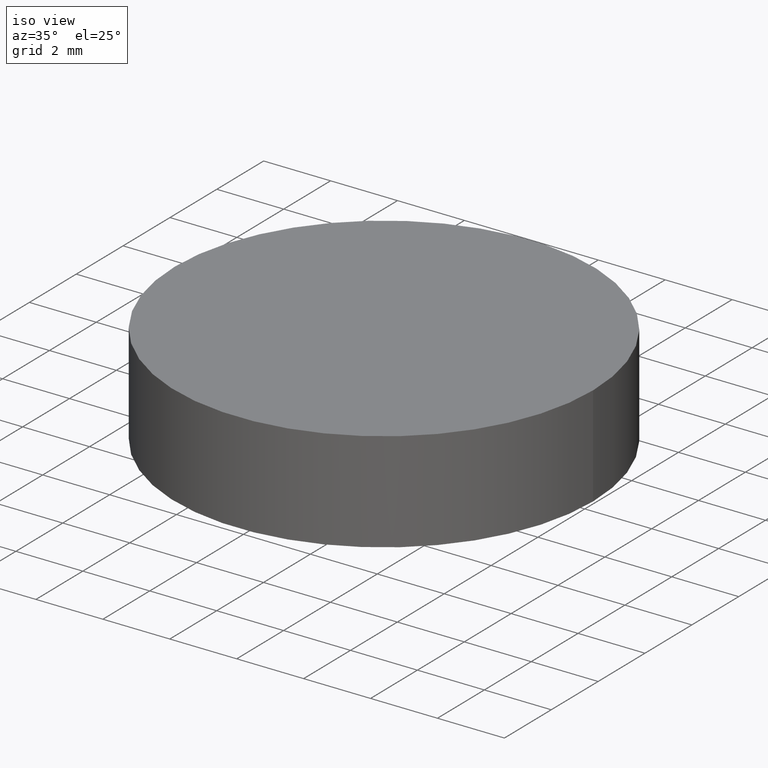
[diagram: clean part render]
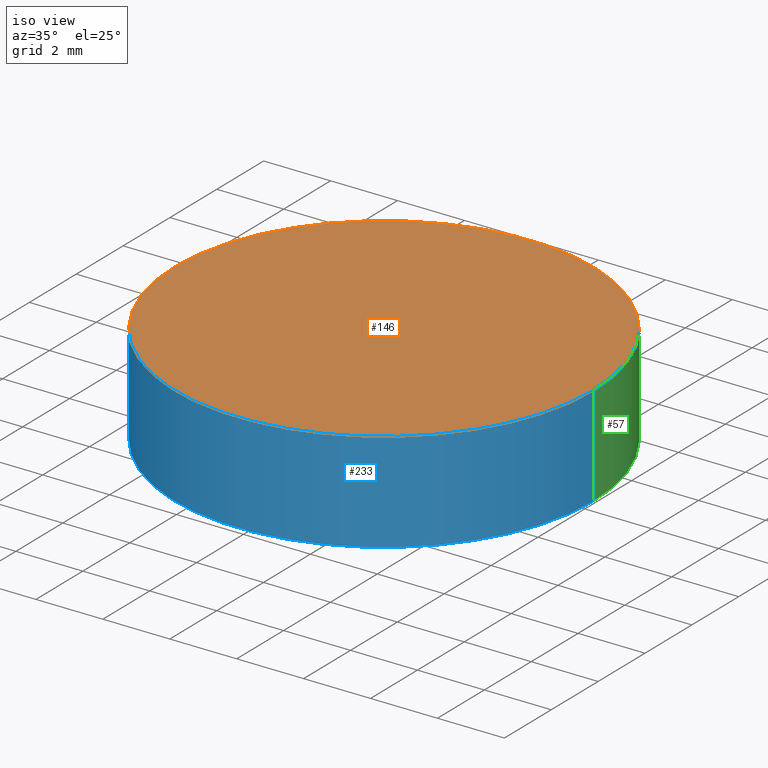
[diagram: same view with three faces highlighted in distinct colors, each labeled with its STEP entity id]
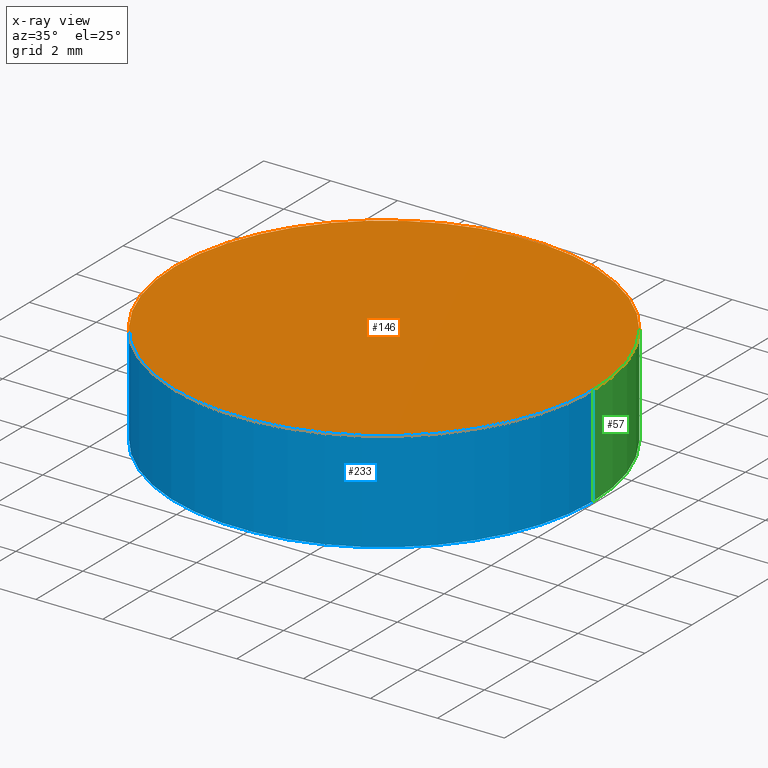
[diagram: x-ray of the same camera — body ghosted, the three highlighted faces saturated]
A machine part, iso view with three faces highlighted in distinct colors.
The next image is the same camera in x-ray (body ghosted, the three faces saturated) — at least one of them is partly hidden behind the body in this view.
Their STEP definitions:

[orange] entity #146 — the highlighted planar face has unit normal (0, 0, 1).
#1 = VERTEX_POINT ( 'NONE', #151 ) ;
#28 = DIRECTION ( 'NONE',  ( 0.0000000000000000000, 0.0000000000000000000, 1.000000000000000000 ) ) ;
#29 = PLANE ( 'NONE',  #49 ) ;
#44 = ORIENTED_EDGE ( 'NONE', *, *, #247, .T. ) ;
#45 = DIRECTION ( 'NONE',  ( 1.000000000000000000, 0.0000000000000000000, 0.0000000000000000000 ) ) ;
#49 = AXIS2_PLACEMENT_3D ( 'NONE', #217, #239, #160 ) ;
#62 = CARTESIAN_POINT ( 'NONE',  ( 0.0000000000000000000, 0.0000000000000000000, 3.000000000000000000 ) ) ;
#80 = EDGE_LOOP ( 'NONE', ( #44, #104 ) ) ;
#104 = ORIENTED_EDGE ( 'NONE', *, *, #137, .T. ) ;
#120 = CARTESIAN_POINT ( 'NONE',  ( 6.249999999999998200, 7.654042494670955600E-016, 3.000000000000000000 ) ) ;
#126 = FACE_OUTER_BOUND ( 'NONE', #80, .T. ) ;
#134 = DIRECTION ( 'NONE',  ( 0.0000000000000000000, 0.0000000000000000000, 1.000000000000000000 ) ) ;
#137 = EDGE_CURVE ( 'NONE', #197, #1, #195, .T. ) ;
#138 = CARTESIAN_POINT ( 'NONE',  ( 0.0000000000000000000, 0.0000000000000000000, 3.000000000000000000 ) ) ;
#146 = ADVANCED_FACE ( 'NONE', ( #126 ), #29, .T. ) ;
#149 = CIRCLE ( 'NONE', #203, 6.249999999999998200 ) ;
#151 = CARTESIAN_POINT ( 'NONE',  ( -6.249999999999998200, 0.0000000000000000000, 3.000000000000000000 ) ) ;
#154 = AXIS2_PLACEMENT_3D ( 'NONE', #138, #28, #156 ) ;
#156 = DIRECTION ( 'NONE',  ( 1.000000000000000000, 0.0000000000000000000, 0.0000000000000000000 ) ) ;
#160 = DIRECTION ( 'NONE',  ( 1.000000000000000000, 0.0000000000000000000, -0.0000000000000000000 ) ) ;
#195 = CIRCLE ( 'NONE', #154, 6.249999999999998200 ) ;
#197 = VERTEX_POINT ( 'NONE', #120 ) ;
#203 = AXIS2_PLACEMENT_3D ( 'NONE', #62, #134, #45 ) ;
#217 = CARTESIAN_POINT ( 'NONE',  ( 0.0000000000000000000, 0.0000000000000000000, 3.000000000000000000 ) ) ;
#239 = DIRECTION ( 'NONE',  ( 0.0000000000000000000, 0.0000000000000000000, 1.000000000000000000 ) ) ;
#247 = EDGE_CURVE ( 'NONE', #1, #197, #149, .T. ) ;

[blue] entity #233 — the highlighted cylindrical surface (partial cylindrical patch) has radius 6.25 mm, axis along (-0, -0, -1).
#1 = VERTEX_POINT ( 'NONE', #151 ) ;
#8 = DIRECTION ( 'NONE',  ( -0.0000000000000000000, -0.0000000000000000000, -1.000000000000000000 ) ) ;
#12 = AXIS2_PLACEMENT_3D ( 'NONE', #122, #8, #214 ) ;
#15 = ORIENTED_EDGE ( 'NONE', *, *, #226, .T. ) ;
#31 = EDGE_LOOP ( 'NONE', ( #95, #131, #15, #52 ) ) ;
#36 = VERTEX_POINT ( 'NONE', #117 ) ;
#41 = LINE ( 'NONE', #213, #240 ) ;
#45 = DIRECTION ( 'NONE',  ( 1.000000000000000000, 0.0000000000000000000, 0.0000000000000000000 ) ) ;
#48 = DIRECTION ( 'NONE',  ( 1.000000000000000000, 0.0000000000000000000, 0.0000000000000000000 ) ) ;
#51 = LINE ( 'NONE', #136, #250 ) ;
#52 = ORIENTED_EDGE ( 'NONE', *, *, #108, .T. ) ;
#62 = CARTESIAN_POINT ( 'NONE',  ( 0.0000000000000000000, 0.0000000000000000000, 3.000000000000000000 ) ) ;
#64 = DIRECTION ( 'NONE',  ( 0.0000000000000000000, 0.0000000000000000000, 1.000000000000000000 ) ) ;
#95 = ORIENTED_EDGE ( 'NONE', *, *, #183, .F. ) ;
#108 = EDGE_CURVE ( 'NONE', #193, #36, #231, .T. ) ;
#117 = CARTESIAN_POINT ( 'NONE',  ( 6.249999999999998200, 7.654042494670955600E-016, 0.0000000000000000000 ) ) ;
#119 = CARTESIAN_POINT ( 'NONE',  ( -6.249999999999998200, 0.0000000000000000000, 0.0000000000000000000 ) ) ;
#120 = CARTESIAN_POINT ( 'NONE',  ( 6.249999999999998200, 7.654042494670955600E-016, 3.000000000000000000 ) ) ;
#122 = CARTESIAN_POINT ( 'NONE',  ( 0.0000000000000000000, 0.0000000000000000000, 3.000000000000000000 ) ) ;
#131 = ORIENTED_EDGE ( 'NONE', *, *, #247, .F. ) ;
#134 = DIRECTION ( 'NONE',  ( 0.0000000000000000000, 0.0000000000000000000, 1.000000000000000000 ) ) ;
#136 = CARTESIAN_POINT ( 'NONE',  ( 6.249999999999998200, 7.654042494670955600E-016, 3.000000000000000000 ) ) ;
#140 = CYLINDRICAL_SURFACE ( 'NONE', #12, 6.249999999999998200 ) ;
#148 = AXIS2_PLACEMENT_3D ( 'NONE', #181, #64, #48 ) ;
#149 = CIRCLE ( 'NONE', #203, 6.249999999999998200 ) ;
#151 = CARTESIAN_POINT ( 'NONE',  ( -6.249999999999998200, 0.0000000000000000000, 3.000000000000000000 ) ) ;
#179 = DIRECTION ( 'NONE',  ( -0.0000000000000000000, -0.0000000000000000000, -1.000000000000000000 ) ) ;
#181 = CARTESIAN_POINT ( 'NONE',  ( 0.0000000000000000000, 0.0000000000000000000, 0.0000000000000000000 ) ) ;
#183 = EDGE_CURVE ( 'NONE', #197, #36, #51, .T. ) ;
#184 = FACE_OUTER_BOUND ( 'NONE', #31, .T. ) ;
#193 = VERTEX_POINT ( 'NONE', #119 ) ;
#197 = VERTEX_POINT ( 'NONE', #120 ) ;
#203 = AXIS2_PLACEMENT_3D ( 'NONE', #62, #134, #45 ) ;
#213 = CARTESIAN_POINT ( 'NONE',  ( -6.249999999999998200, 0.0000000000000000000, 3.000000000000000000 ) ) ;
#214 = DIRECTION ( 'NONE',  ( -1.000000000000000000, 0.0000000000000000000, 0.0000000000000000000 ) ) ;
#226 = EDGE_CURVE ( 'NONE', #1, #193, #41, .T. ) ;
#231 = CIRCLE ( 'NONE', #148, 6.249999999999998200 ) ;
#233 = ADVANCED_FACE ( 'NONE', ( #184 ), #140, .T. ) ;
#238 = DIRECTION ( 'NONE',  ( -0.0000000000000000000, -0.0000000000000000000, -1.000000000000000000 ) ) ;
#240 = VECTOR ( 'NONE', #179, 1000.000000000000000 ) ;
#247 = EDGE_CURVE ( 'NONE', #1, #197, #149, .T. ) ;
#250 = VECTOR ( 'NONE', #238, 1000.000000000000000 ) ;

[green] entity #57 — the highlighted cylindrical surface (partial cylindrical patch) has radius 6.25 mm, axis along (-0, -0, -1).
#1 = VERTEX_POINT ( 'NONE', #151 ) ;
#28 = DIRECTION ( 'NONE',  ( 0.0000000000000000000, 0.0000000000000000000, 1.000000000000000000 ) ) ;
#36 = VERTEX_POINT ( 'NONE', #117 ) ;
#41 = LINE ( 'NONE', #213, #240 ) ;
#43 = DIRECTION ( 'NONE',  ( 0.0000000000000000000, 0.0000000000000000000, 1.000000000000000000 ) ) ;
#47 = ORIENTED_EDGE ( 'NONE', *, *, #164, .T. ) ;
#51 = LINE ( 'NONE', #136, #250 ) ;
#57 = ADVANCED_FACE ( 'NONE', ( #127 ), #86, .T. ) ;
#82 = DIRECTION ( 'NONE',  ( 1.000000000000000000, 0.0000000000000000000, 0.0000000000000000000 ) ) ;
#86 = CYLINDRICAL_SURFACE ( 'NONE', #242, 6.249999999999998200 ) ;
#93 = CARTESIAN_POINT ( 'NONE',  ( 0.0000000000000000000, 0.0000000000000000000, 3.000000000000000000 ) ) ;
#96 = DIRECTION ( 'NONE',  ( -1.000000000000000000, 0.0000000000000000000, 0.0000000000000000000 ) ) ;
#98 = CARTESIAN_POINT ( 'NONE',  ( 0.0000000000000000000, 0.0000000000000000000, 0.0000000000000000000 ) ) ;
#99 = DIRECTION ( 'NONE',  ( -0.0000000000000000000, -0.0000000000000000000, -1.000000000000000000 ) ) ;
#117 = CARTESIAN_POINT ( 'NONE',  ( 6.249999999999998200, 7.654042494670955600E-016, 0.0000000000000000000 ) ) ;
#119 = CARTESIAN_POINT ( 'NONE',  ( -6.249999999999998200, 0.0000000000000000000, 0.0000000000000000000 ) ) ;
#120 = CARTESIAN_POINT ( 'NONE',  ( 6.249999999999998200, 7.654042494670955600E-016, 3.000000000000000000 ) ) ;
#127 = FACE_OUTER_BOUND ( 'NONE', #139, .T. ) ;
#136 = CARTESIAN_POINT ( 'NONE',  ( 6.249999999999998200, 7.654042494670955600E-016, 3.000000000000000000 ) ) ;
#137 = EDGE_CURVE ( 'NONE', #197, #1, #195, .T. ) ;
#138 = CARTESIAN_POINT ( 'NONE',  ( 0.0000000000000000000, 0.0000000000000000000, 3.000000000000000000 ) ) ;
#139 = EDGE_LOOP ( 'NONE', ( #172, #245, #47, #176 ) ) ;
#151 = CARTESIAN_POINT ( 'NONE',  ( -6.249999999999998200, 0.0000000000000000000, 3.000000000000000000 ) ) ;
#154 = AXIS2_PLACEMENT_3D ( 'NONE', #138, #28, #156 ) ;
#156 = DIRECTION ( 'NONE',  ( 1.000000000000000000, 0.0000000000000000000, 0.0000000000000000000 ) ) ;
#164 = EDGE_CURVE ( 'NONE', #36, #193, #201, .T. ) ;
#172 = ORIENTED_EDGE ( 'NONE', *, *, #137, .F. ) ;
#176 = ORIENTED_EDGE ( 'NONE', *, *, #226, .F. ) ;
#179 = DIRECTION ( 'NONE',  ( -0.0000000000000000000, -0.0000000000000000000, -1.000000000000000000 ) ) ;
#183 = EDGE_CURVE ( 'NONE', #197, #36, #51, .T. ) ;
#185 = AXIS2_PLACEMENT_3D ( 'NONE', #98, #43, #82 ) ;
#193 = VERTEX_POINT ( 'NONE', #119 ) ;
#195 = CIRCLE ( 'NONE', #154, 6.249999999999998200 ) ;
#197 = VERTEX_POINT ( 'NONE', #120 ) ;
#201 = CIRCLE ( 'NONE', #185, 6.249999999999998200 ) ;
#213 = CARTESIAN_POINT ( 'NONE',  ( -6.249999999999998200, 0.0000000000000000000, 3.000000000000000000 ) ) ;
#226 = EDGE_CURVE ( 'NONE', #1, #193, #41, .T. ) ;
#238 = DIRECTION ( 'NONE',  ( -0.0000000000000000000, -0.0000000000000000000, -1.000000000000000000 ) ) ;
#240 = VECTOR ( 'NONE', #179, 1000.000000000000000 ) ;
#242 = AXIS2_PLACEMENT_3D ( 'NONE', #93, #99, #96 ) ;
#245 = ORIENTED_EDGE ( 'NONE', *, *, #183, .T. ) ;
#250 = VECTOR ( 'NONE', #238, 1000.000000000000000 ) ;